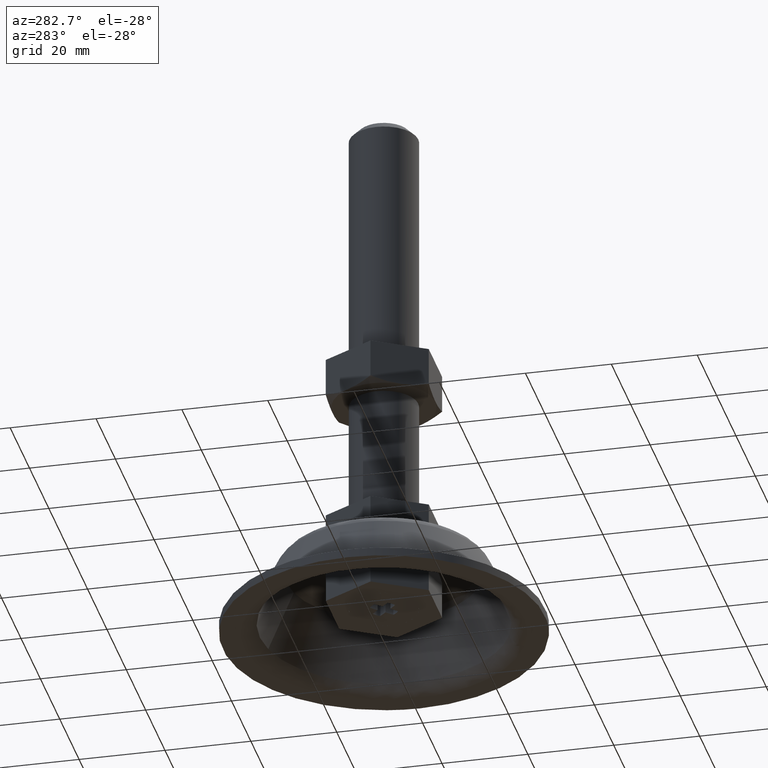
[diagram: clean part render]
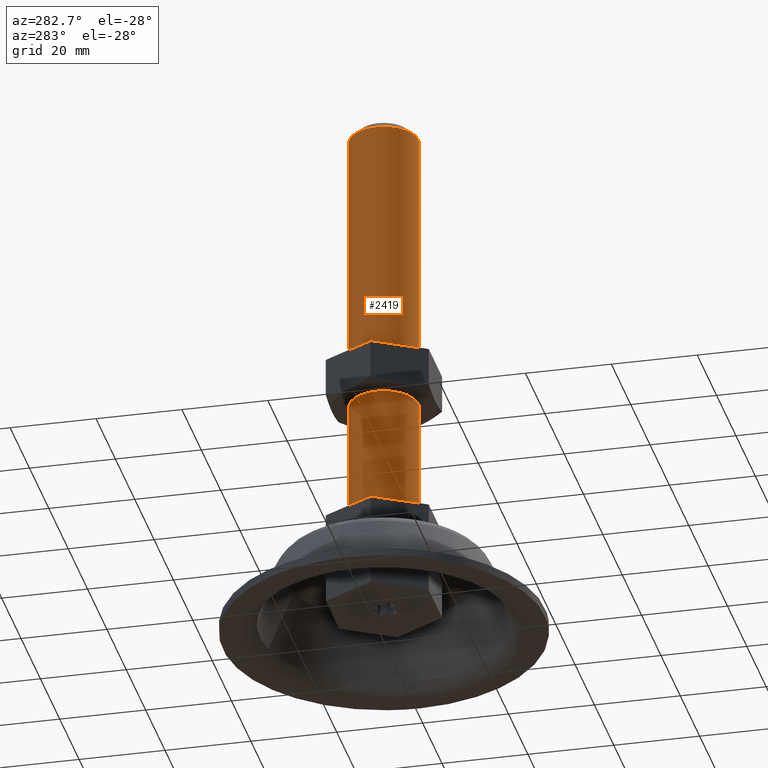
[diagram: same view with one face highlighted and labeled with its STEP entity id]
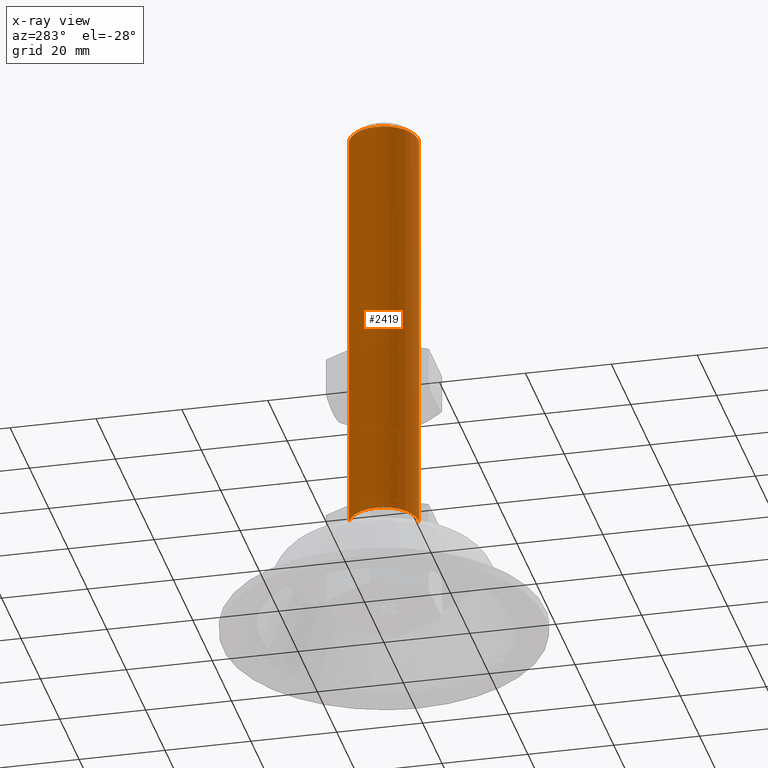
[diagram: x-ray of the same camera — body ghosted, the highlighted face saturated]
A machine part, auxiliary view. The second image highlights one B-rep face of the part: STEP entity #2419.
The next image is the same camera in x-ray: the body ghosted, the highlighted face saturated — about 0% of this face is hidden behind the body in this view.
In plain terms, the highlighted face is a freeform B-spline surface patch.
Its self-contained STEP definition (entity closure, byte-faithful):
#2302=CARTESIAN_POINT('',(1.407112720920958,-7.875279918239248,128.450000000000070));
#2303=CARTESIAN_POINT('',(0.950930602279088,-7.956788089232766,128.450000000000050));
#2304=CARTESIAN_POINT('',(0.488388316278856,-7.985078387374934,128.449999999999990));
#2305=CARTESIAN_POINT('',(-7.496690071096078,-8.473466703653790,128.450000000000020));
#2306=CARTESIAN_POINT('',(-7.985078387374934,-0.488388316278856,128.449999999999990));
#2307=CARTESIAN_POINT('',(-8.473466703653790,7.496690071096078,128.450000000000020));
#2308=CARTESIAN_POINT('',(-0.488388316278856,7.985078387374934,128.449999999999990));
#2309=CARTESIAN_POINT('',(1.407112720920958,-7.875279918239248,25.488750000000003));
#2310=CARTESIAN_POINT('',(0.950930602279088,-7.956788089232766,25.488750000000003));
#2311=CARTESIAN_POINT('',(0.488388316278856,-7.985078387374934,25.488750000000000));
#2312=CARTESIAN_POINT('',(-7.496690071096078,-8.473466703653790,25.488749999999996));
#2313=CARTESIAN_POINT('',(-7.985078387374934,-0.488388316278856,25.488750000000000));
#2314=CARTESIAN_POINT('',(-8.473466703653790,7.496690071096078,25.488749999999996));
#2315=CARTESIAN_POINT('',(-0.488388316278856,7.985078387374934,25.488750000000000));
#2323=(BOUNDED_SURFACE()B_SPLINE_SURFACE(2,1,((#2302,#2309),(#2303,#2310),(#2304,#2311),(#2305,#2312),(#2306,#2313),(#2307,#2314),(#2308,#2315)),.UNSPECIFIED.,.F.,.F.,.U.)B_SPLINE_SURFACE_WITH_KNOTS((3,2,2,3),(2,2),(0.0,1.060386719675124,14.315220715614160,27.570054711553190),(0.0,102.961250000000010),.UNSPECIFIED.)GEOMETRIC_REPRESENTATION_ITEM()RATIONAL_B_SPLINE_SURFACE(((0.956886118190660,0.956886118190660),(0.976568542494924,0.976568542494924),(1.0,1.0),(0.707106781186548,0.707106781186548),(1.0,1.0),(0.707106781186548,0.707106781186548),(1.0,1.0)))REPRESENTATION_ITEM('')SURFACE());
#2324=CARTESIAN_POINT('',(1.407112720970552,-7.875279918230389,126.0));
#2325=VERTEX_POINT('',#2324);
#2326=CARTESIAN_POINT('',(-0.069812284724302,-7.999695384607404,125.999999999899500));
#2327=VERTEX_POINT('',#2326);
#2328=CARTESIAN_POINT('',(1.407112720970551,-7.875279918230389,125.999999999999990));
#2329=CARTESIAN_POINT('',(0.709083671352502,-8.0,126.000000000000040));
#2330=CARTESIAN_POINT('',(0.0,-8.0,126.0));
#2331=CARTESIAN_POINT('',(-0.034906807302085,-8.0,126.000000000000040));
#2332=CARTESIAN_POINT('',(-0.069812284724302,-7.999695384607404,125.999999999899500));
#2340=(BOUNDED_CURVE()B_SPLINE_CURVE(2,(#2328,#2329,#2330,#2331,#2332),.UNSPECIFIED.,.F.,.U.)B_SPLINE_CURVE_WITH_KNOTS((3,2,3),(0.219772409025256,0.250000000000000,0.251539894367418),.UNSPECIFIED.)CURVE()GEOMETRIC_REPRESENTATION_ITEM()RATIONAL_B_SPLINE_CURVE((0.937736145757143,0.964586174329723,1.0,0.998195901528377,0.996414028025353))REPRESENTATION_ITEM(''));
#2341=EDGE_CURVE('',#2325,#2327,#2340,.T.);
#2342=ORIENTED_EDGE('',*,*,#2341,.T.);
#2343=CARTESIAN_POINT('',(-8.0,0.0,126.0));
#2344=VERTEX_POINT('',#2343);
#2345=CARTESIAN_POINT('',(-0.069812284724302,-7.999695384607404,125.999999999899560));
#2346=CARTESIAN_POINT('',(-8.0,-7.930489683299643,126.0));
#2347=CARTESIAN_POINT('',(-8.0,0.0,126.0));
#2355=(BOUNDED_CURVE()B_SPLINE_CURVE(2,(#2345,#2346,#2347),.UNSPECIFIED.,.F.,.U.)B_SPLINE_CURVE_WITH_KNOTS((3,3),(0.251539894367418,0.500000000000000),.UNSPECIFIED.)CURVE()GEOMETRIC_REPRESENTATION_ITEM()RATIONAL_B_SPLINE_CURVE((0.996414028025352,0.708910879658170,1.0))REPRESENTATION_ITEM(''));
#2356=EDGE_CURVE('',#2327,#2344,#2355,.T.);
#2357=ORIENTED_EDGE('',*,*,#2356,.T.);
#2358=CARTESIAN_POINT('',(-0.488388316431298,7.985078387365611,126.0));
#2359=VERTEX_POINT('',#2358);
#2360=CARTESIAN_POINT('',(-8.0,0.0,126.0));
#2361=CARTESIAN_POINT('',(-8.0,7.525648534957727,126.0));
#2362=CARTESIAN_POINT('',(-0.488388316431299,7.985078387365610,125.999999999999960));
#2370=(BOUNDED_CURVE()B_SPLINE_CURVE(2,(#2360,#2361,#2362),.UNSPECIFIED.,.F.,.U.)B_SPLINE_CURVE_WITH_KNOTS((3,3),(0.500000000000000,0.739332962235381),.UNSPECIFIED.)CURVE()GEOMETRIC_REPRESENTATION_ITEM()RATIONAL_B_SPLINE_CURVE((1.0,0.719603993290883,0.976072041659084))REPRESENTATION_ITEM(''));
#2371=EDGE_CURVE('',#2344,#2359,#2370,.T.);
#2372=ORIENTED_EDGE('',*,*,#2371,.T.);
#2373=CARTESIAN_POINT('',(-0.488388316431298,7.985078387365611,28.0));
#2374=VERTEX_POINT('',#2373);
#2375=CARTESIAN_POINT('',(-0.488388316431298,7.985078387365611,126.0));
#2376=CARTESIAN_POINT('',(-0.488388316431298,7.985078387365611,28.0));
#2377=QUASI_UNIFORM_CURVE('',1,(#2375,#2376),.UNSPECIFIED.,.F.,.U.);
#2378=EDGE_CURVE('',#2359,#2374,#2377,.T.);
#2379=ORIENTED_EDGE('',*,*,#2378,.T.);
#2380=CARTESIAN_POINT('',(-8.0,0.0,28.0));
#2381=VERTEX_POINT('',#2380);
#2382=CARTESIAN_POINT('',(-8.0,0.0,28.0));
#2383=CARTESIAN_POINT('',(-8.0,7.525648534957727,27.999999999999996));
#2384=CARTESIAN_POINT('',(-0.488388316431299,7.985078387365610,28.000000000000004));
#2392=(BOUNDED_CURVE()B_SPLINE_CURVE(2,(#2382,#2383,#2384),.UNSPECIFIED.,.F.,.U.)B_SPLINE_CURVE_WITH_KNOTS((3,3),(0.500000000000000,0.739332962235381),.UNSPECIFIED.)CURVE()GEOMETRIC_REPRESENTATION_ITEM()RATIONAL_B_SPLINE_CURVE((1.0,0.719603993290883,0.976072041659084))REPRESENTATION_ITEM(''));
#2393=EDGE_CURVE('',#2381,#2374,#2392,.T.);
#2394=ORIENTED_EDGE('',*,*,#2393,.F.);
#2395=CARTESIAN_POINT('',(1.407112720970552,-7.875279918230389,28.0));
#2396=VERTEX_POINT('',#2395);
#2397=CARTESIAN_POINT('',(1.407112720970551,-7.875279918230389,27.999999999999996));
#2398=CARTESIAN_POINT('',(0.709083671352502,-8.0,28.000000000000004));
#2399=CARTESIAN_POINT('',(0.0,-8.0,28.0));
#2400=CARTESIAN_POINT('',(-8.0,-8.0,27.999999999999996));
#2401=CARTESIAN_POINT('',(-8.0,0.0,28.0));
#2409=(BOUNDED_CURVE()B_SPLINE_CURVE(2,(#2397,#2398,#2399,#2400,#2401),.UNSPECIFIED.,.F.,.U.)B_SPLINE_CURVE_WITH_KNOTS((3,2,3),(0.219772409025256,0.250000000000000,0.500000000000000),.UNSPECIFIED.)CURVE()GEOMETRIC_REPRESENTATION_ITEM()RATIONAL_B_SPLINE_CURVE((0.937736145757143,0.964586174329723,1.0,0.707106781186548,1.0))REPRESENTATION_ITEM(''));
#2410=EDGE_CURVE('',#2396,#2381,#2409,.T.);
#2411=ORIENTED_EDGE('',*,*,#2410,.F.);
#2412=CARTESIAN_POINT('',(1.407112720970552,-7.875279918230389,126.0));
#2413=CARTESIAN_POINT('',(1.407112720970552,-7.875279918230389,28.0));
#2414=QUASI_UNIFORM_CURVE('',1,(#2412,#2413),.UNSPECIFIED.,.F.,.U.);
#2415=EDGE_CURVE('',#2325,#2396,#2414,.T.);
#2416=ORIENTED_EDGE('',*,*,#2415,.F.);
#2417=EDGE_LOOP('',(#2342,#2357,#2372,#2379,#2394,#2411,#2416));
#2418=FACE_OUTER_BOUND('',#2417,.T.);
#2419=ADVANCED_FACE('',(#2418),#2323,.T.);